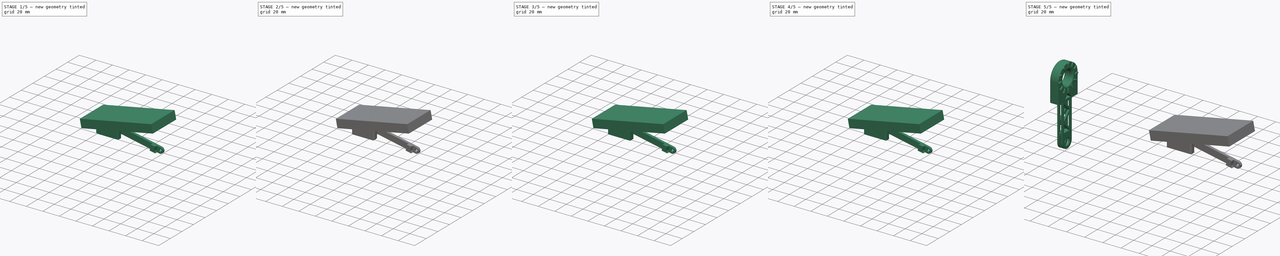
[diagram: build sequence overview — one tinted view per stage of 5, left to right]
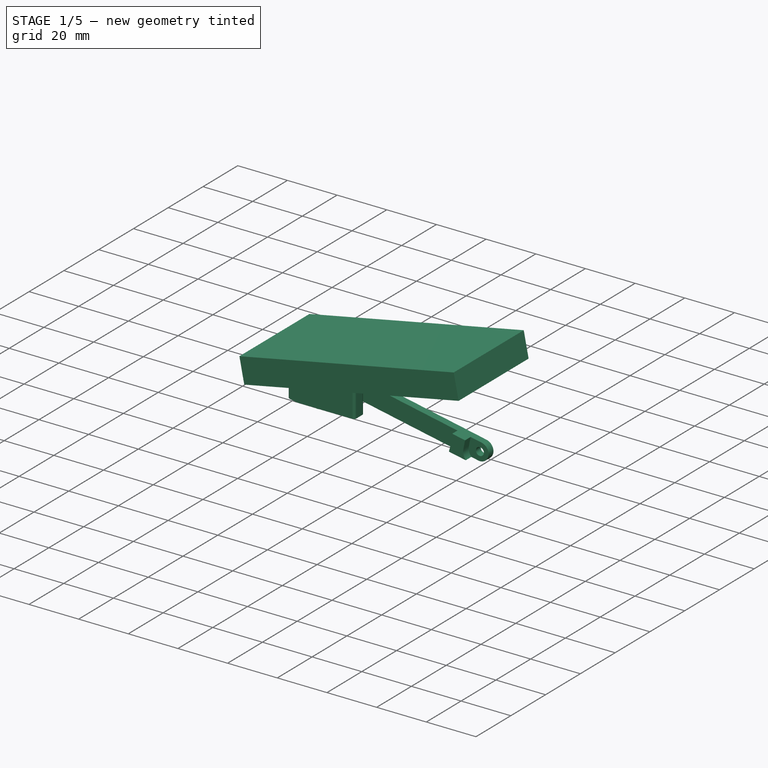
[diagram: stage 1 of 5 — iso view after this stage's code; geometry added in this stage tinted green]
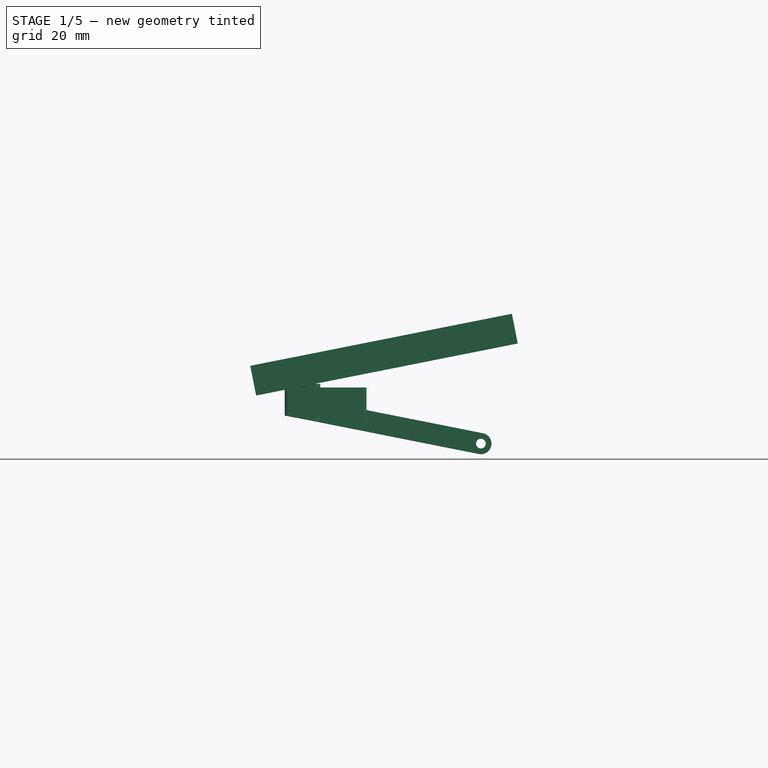
[diagram: stage 1 of 5 — front view after this stage's code; geometry added in this stage tinted green]
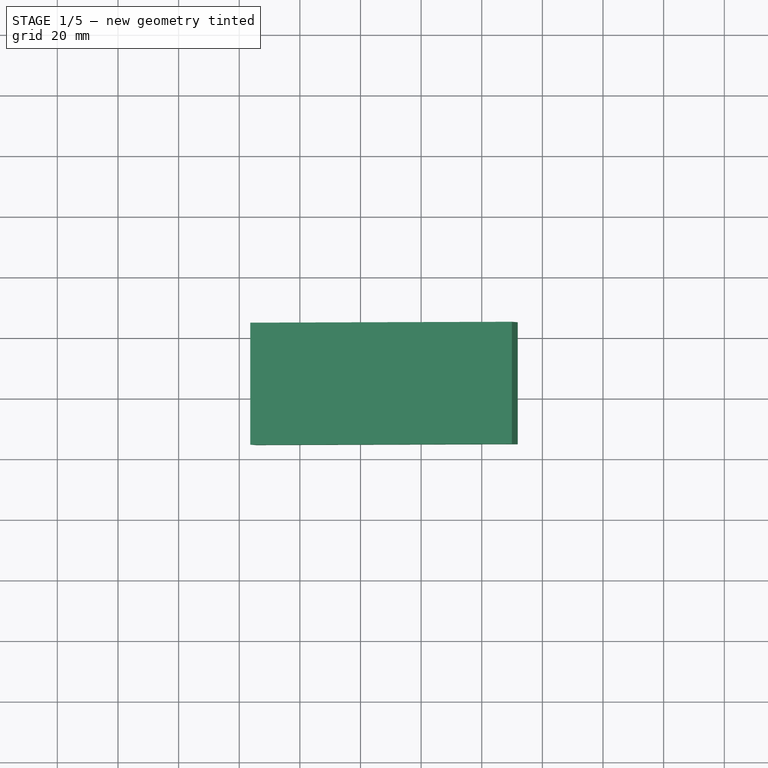
[diagram: stage 1 of 5 — top view after this stage's code; geometry added in this stage tinted green]
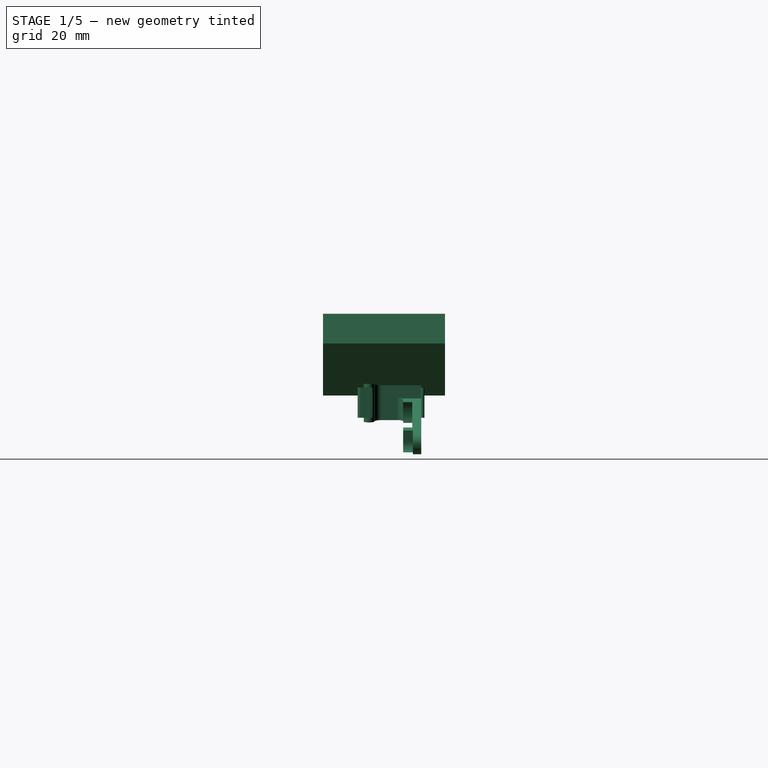
[diagram: stage 1 of 5 — right view after this stage's code; geometry added in this stage tinted green]
FCSTD DOCUMENT  (FreeCAD 0.18R4 (GitTag))
Label: mixer_soportes
License: CreativeCommons Attribution-ShareAlike
LicenseURL: http://creativecommons.org/licenses/by-sa/4.0/
objects: Part::Feature×7, Part::Fillet×7, Part::Box×6, Part::MultiFuse×4, Part::Cut×3, Part::FeaturePython×1, Sketcher::SketchObject×1, Part::Extrusion×1, Part::Mirroring×1
note: 31 computed .brp shape members not serialized (recipe doc carries the construction recipe); baked Part::Feature solids carry a one-line shape summary decoded from their .brp

FEATURE [Part::Feature] Fillet006002  label="Fillet008"
  Placement = pos=(0,0,1) rot=(0,0,1;0rad)
  shape: bbox 27 x 22 x 10 mm, 261 faces (baked)
FEATURE [Part::Feature] Arm_L001_solid003  label="Arm_L001 (Solid)003"
  Placement = pos=(0,0,-0.5) rot=(0,0,1;0rad)
  shape: bbox 65 x 19.5 x 23.7 mm, 628 faces (baked)
FEATURE [Part::MultiFuse] Fusion003
  Shapes = -> [Fillet006002,Arm_L001_solid003]
FEATURE [Sketcher::SketchObject] Sketch
  MapMode = 5
  Placement = pos=(-4.13738,1.78133e-06,20.3) rot=(0,-1,0;0.19635rad)
  Support = -> [Arm_L001_solid002]
  sketch-geometry (4):
    g0: LineSegment StartX=-92.0576 StartY=24.6741 StartZ=0 EndX=-4.05784 EndY=24.6741 EndZ=0
    g1: LineSegment StartX=-4.05784 StartY=24.6741 StartZ=0 EndX=-4.05784 EndY=-15.5873 EndZ=0
    g2: LineSegment StartX=-4.05784 StartY=-15.5873 StartZ=0 EndX=-92.0576 EndY=-15.5873 EndZ=0
    g3: LineSegment StartX=-92.0576 StartY=-15.5873 StartZ=0 EndX=-92.0576 EndY=24.6741 EndZ=0
  constraints (8):
    c: Coincident(g0,g1)
    c: Coincident(g1,g2)
    c: Coincident(g2,g3)
    c: Coincident(g3,g0)
    c: Horizontal(g0)
    c: Horizontal(g2)
    c: Vertical(g1)
    c: Vertical(g3)
FEATURE [Part::Extrusion] Extrude
  Base = -> Sketch
  Dir = (-0.19509,8.39953e-08,0.980785)
  DirMode = 2
  FaceMakerClass = Part::FaceMakerBullseye
  LengthFwd = 10
  LengthRev = 0
  Solid = true
  Symmetric = false
FEATURE [Part::Box] Box005  label="Cube005"
  AttacherType = Attacher::AttachEngine3D
  Height = 10
  Length = 15
  Placement = pos=(-96,-7,2.14) rot=(0,1,0;-0.191986rad)
  Width = 26
FEATURE [Part::Cut] Cut004  label="arm_L_extended"
  Base = -> Fusion003
  Tool = -> Box005
FEATURE [Part::Mirroring] Part__Mirroring  label="arm_L_extended (Mirror #1)"
  Base = (0,0,0)
  Normal = (0,0,1)
  Source = -> Cut004
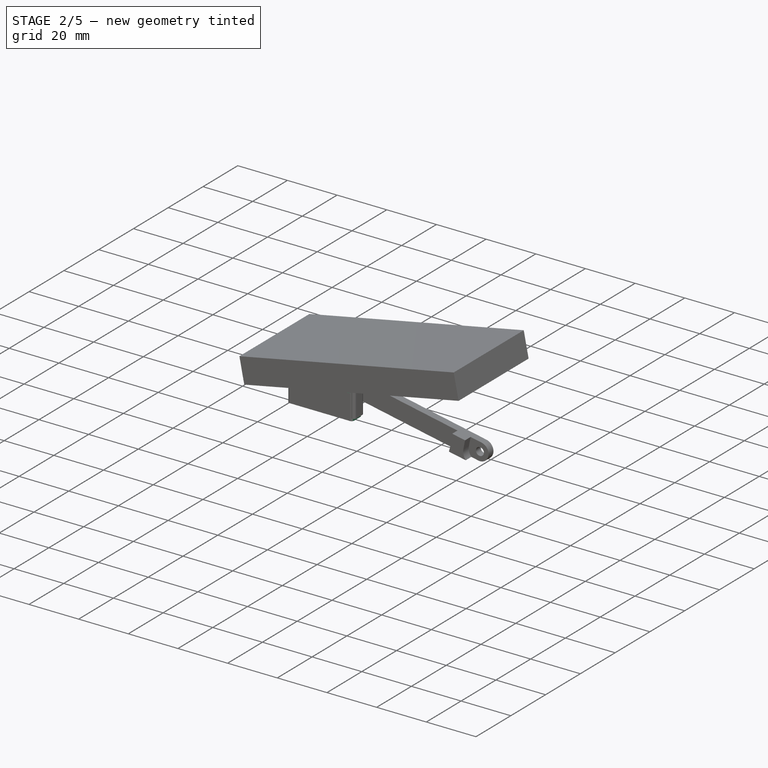
[diagram: stage 2 of 5 — iso view after this stage's code; geometry added in this stage tinted green]
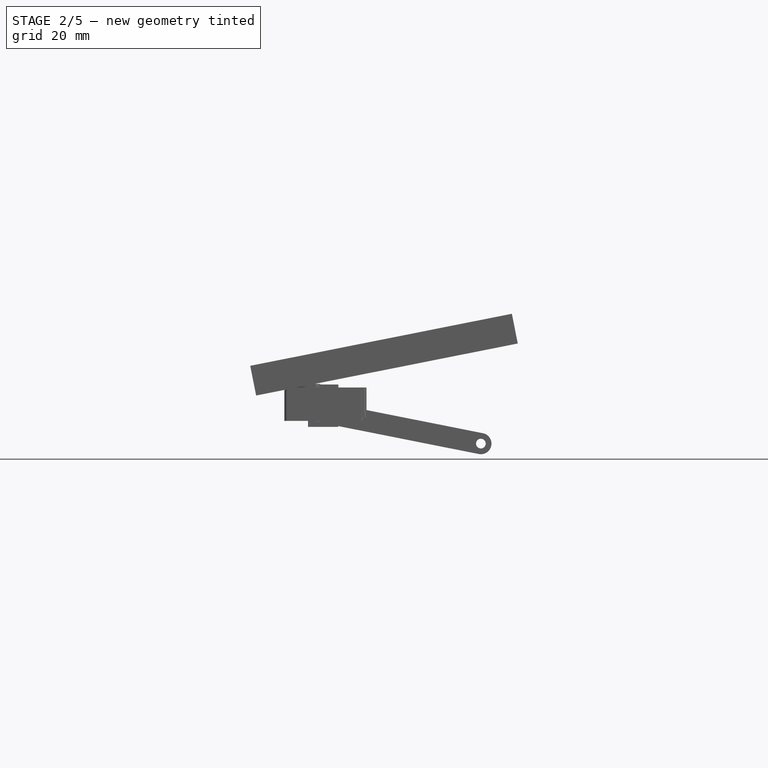
[diagram: stage 2 of 5 — front view after this stage's code; geometry added in this stage tinted green]
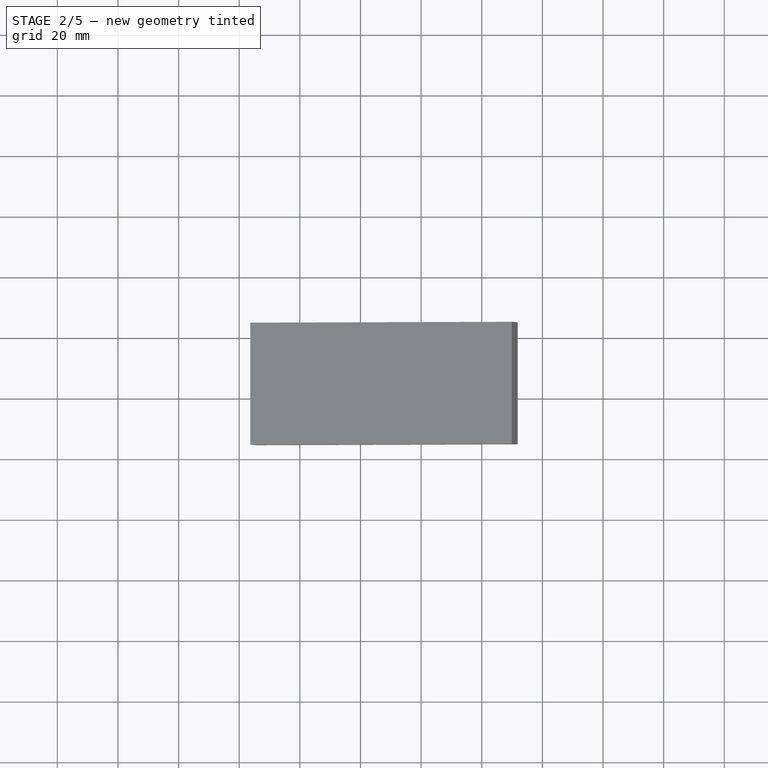
[diagram: stage 2 of 5 — top view after this stage's code; geometry added in this stage tinted green]
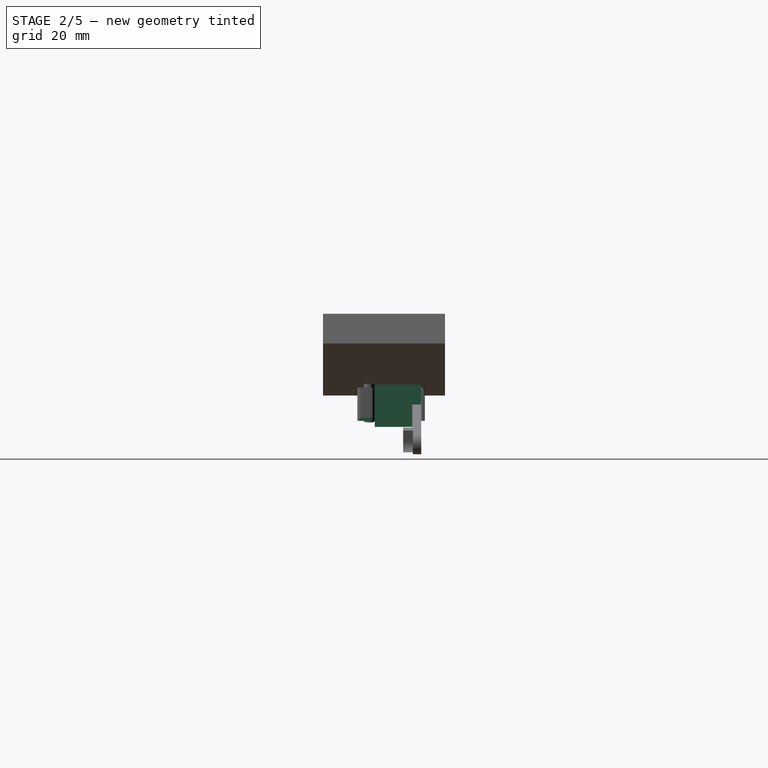
[diagram: stage 2 of 5 — right view after this stage's code; geometry added in this stage tinted green]
FEATURE [Part::Box] Box002  label="Cube002"
  AttacherType = Attacher::AttachEngine3D
  Height = 10
  Length = 8.5
  Placement = pos=(-85,-2.15,-6) rot=(0,0,1;0rad)
  Width = 20
FEATURE [Part::Box] Box003  label="Cube003"
  AttacherType = Attacher::AttachEngine3D
  Height = 14
  Length = 10
  Placement = pos=(-77.3,1.5,-8) rot=(0,0,1;0rad)
  Width = 15.25
FEATURE [Part::Box] Box004  label="Cube004"
  AttacherType = Attacher::AttachEngine3D
  Height = 10
  Length = 11
  Placement = pos=(-84,16.75,-6) rot=(0,0,1;0rad)
  Width = 1.1
FEATURE [Part::Feature] Fillet006001  label="Fillet007"
  shape: bbox 26 x 22 x 10 mm, 246 faces (baked)
FEATURE [Part::Feature] Arm_L001_solid002  label="Arm_L001 (Solid)002"
  Placement = pos=(0,0,-0.5) rot=(0,0,1;0rad)
  shape: bbox 64.5 x 19 x 23.2 mm, 628 faces (baked)
FEATURE [Part::FeaturePython] Scale  label="extendedor_1_percent_bigger"  # Draft clone (typed FeaturePython)
  Fuse = false
  Objects = -> [Fillet006001]
  Placement = pos=(0.753476,-0.0324141,0.06) rot=(0,0,1;0rad)
  Scale = (1.01,1.01,1.01)
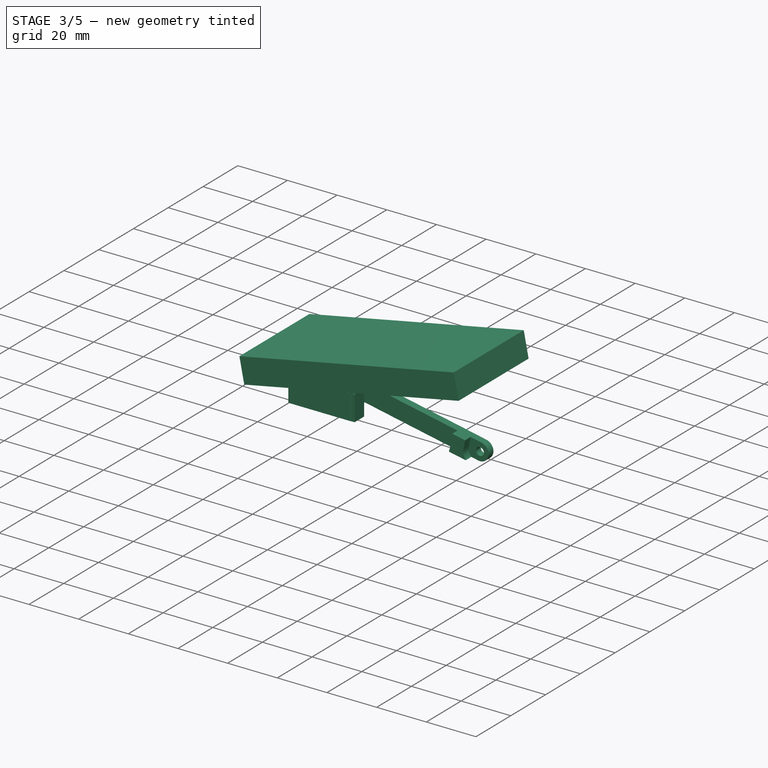
[diagram: stage 3 of 5 — iso view after this stage's code; geometry added in this stage tinted green]
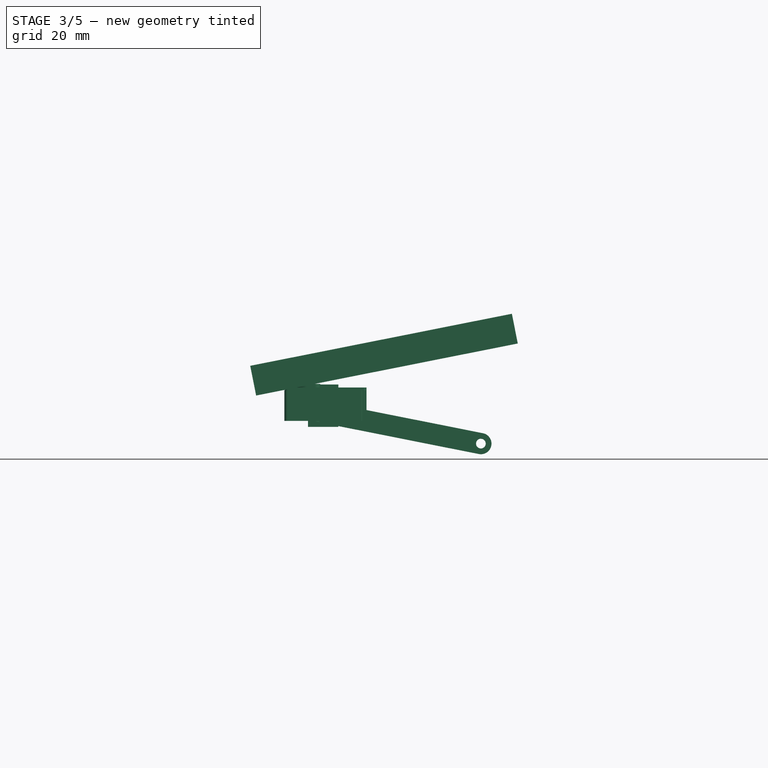
[diagram: stage 3 of 5 — front view after this stage's code; geometry added in this stage tinted green]
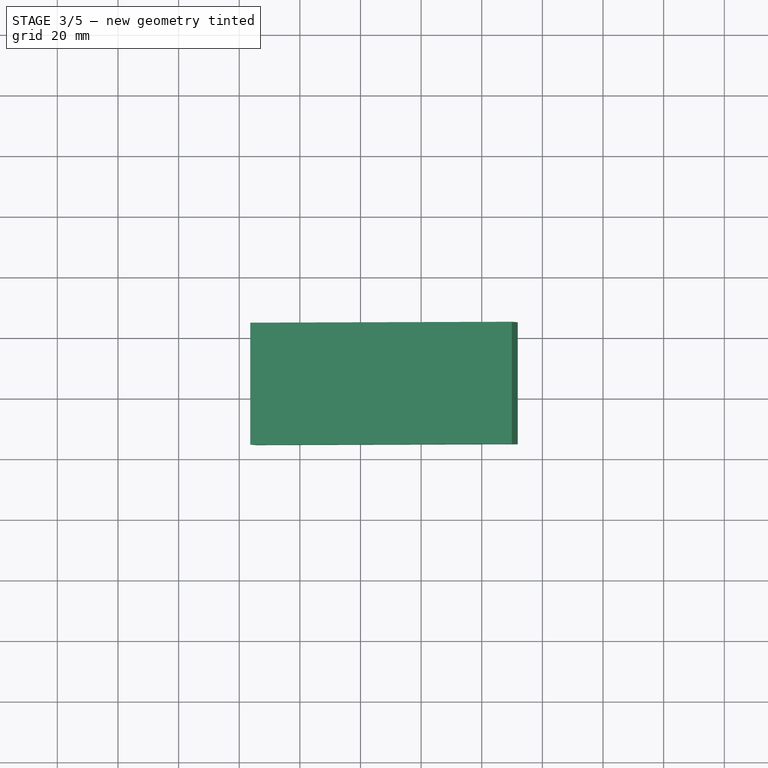
[diagram: stage 3 of 5 — top view after this stage's code; geometry added in this stage tinted green]
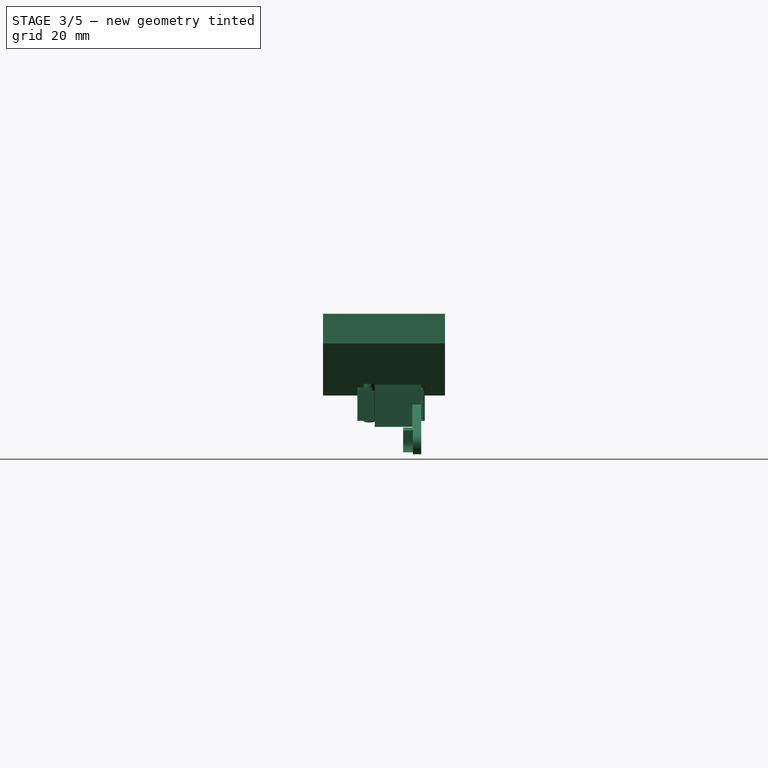
[diagram: stage 3 of 5 — right view after this stage's code; geometry added in this stage tinted green]
FEATURE [Part::Feature] Arm_L001_solid001  label="Arm_L001 (Solid)001"
  Placement = pos=(0,0,-0.5) rot=(0,0,1;0rad)
  shape: bbox 64.5 x 19 x 23.2 mm, 628 faces (baked)
FEATURE [Part::Box] Box  label="Cube"
  AttacherType = Attacher::AttachEngine3D
  Height = 10
  Length = 27
  Placement = pos=(-85,-2.15,-6) rot=(0,0,1;0rad)
  Width = 3.5
FEATURE [Part::Box] Box001  label="Cube001"
  AttacherType = Attacher::AttachEngine3D
  Height = 10
  Length = 27
  Placement = pos=(-85,-4.15,-6) rot=(0,0,1;0rad)
  Width = 2
FEATURE [Part::MultiFuse] Fusion001
  Shapes = -> [Box002,Box001,Box]
FEATURE [Part::Fillet] Fillet002
  Base = -> Fusion001
  Edges = 1 edges r=1: [Edge5]
FEATURE [Part::Fillet] Fillet003
  Base = -> Fillet002
  Edges = 1 edges r=1: [Edge26]
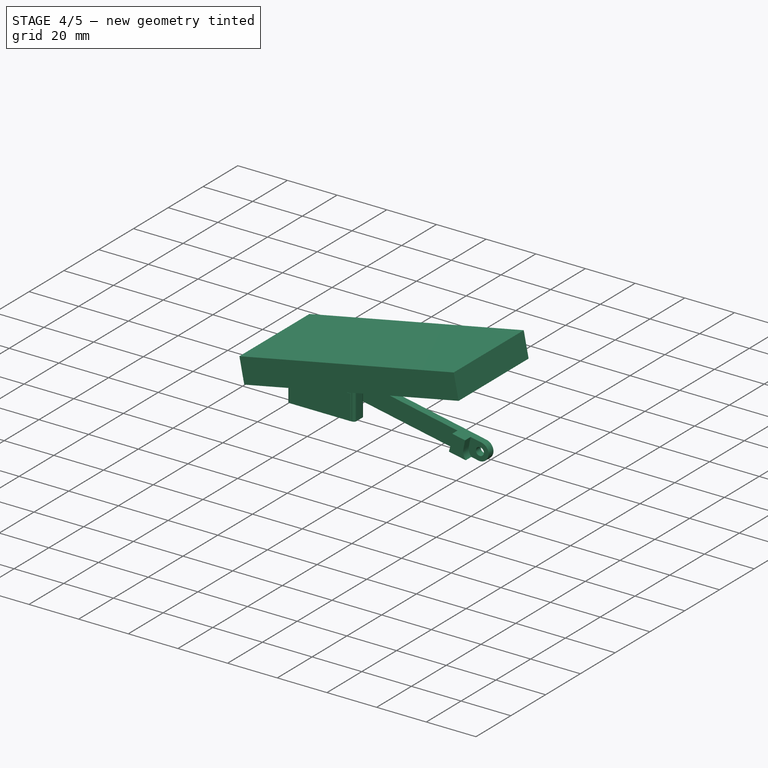
[diagram: stage 4 of 5 — iso view after this stage's code; geometry added in this stage tinted green]
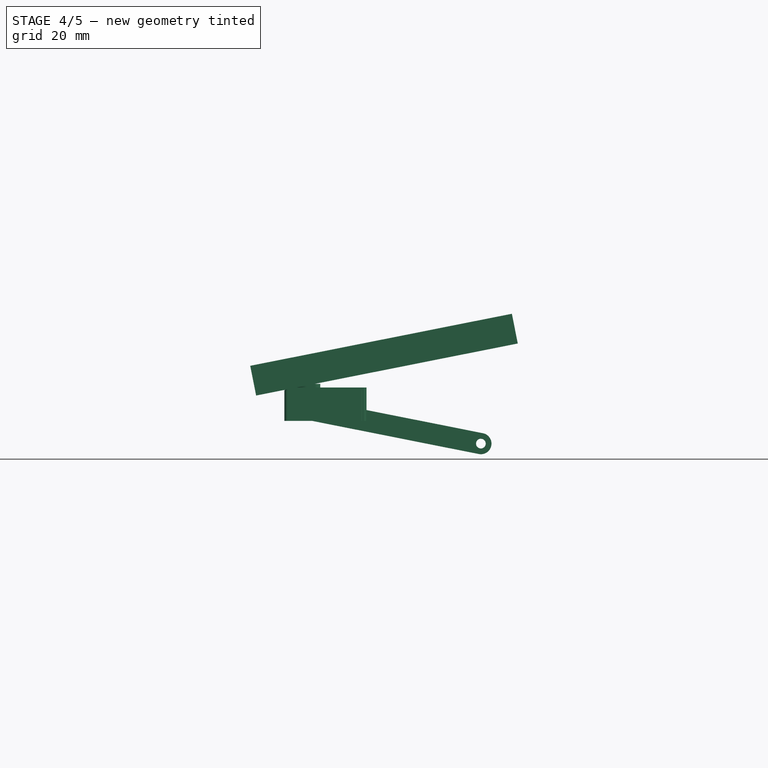
[diagram: stage 4 of 5 — front view after this stage's code; geometry added in this stage tinted green]
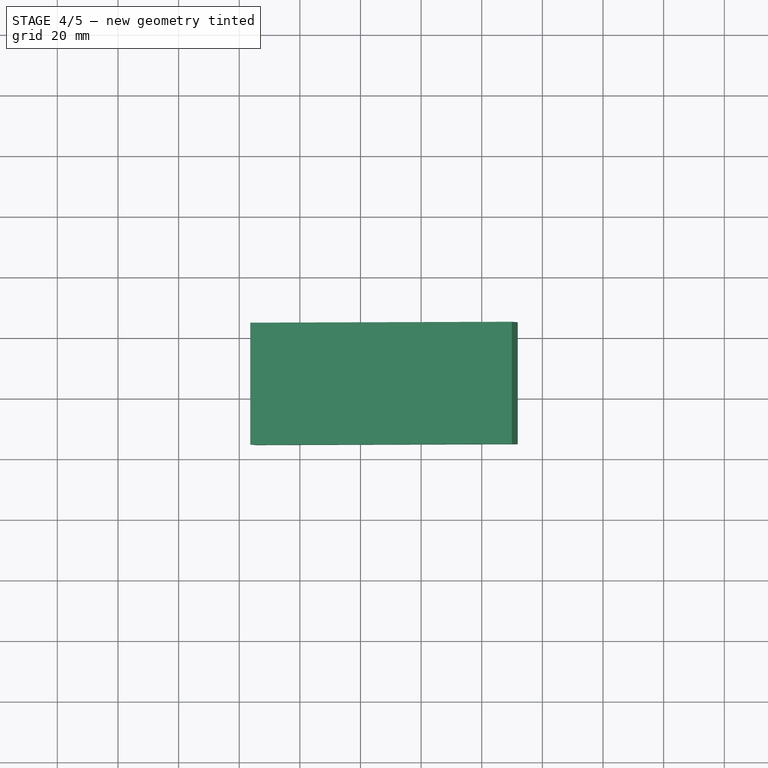
[diagram: stage 4 of 5 — top view after this stage's code; geometry added in this stage tinted green]
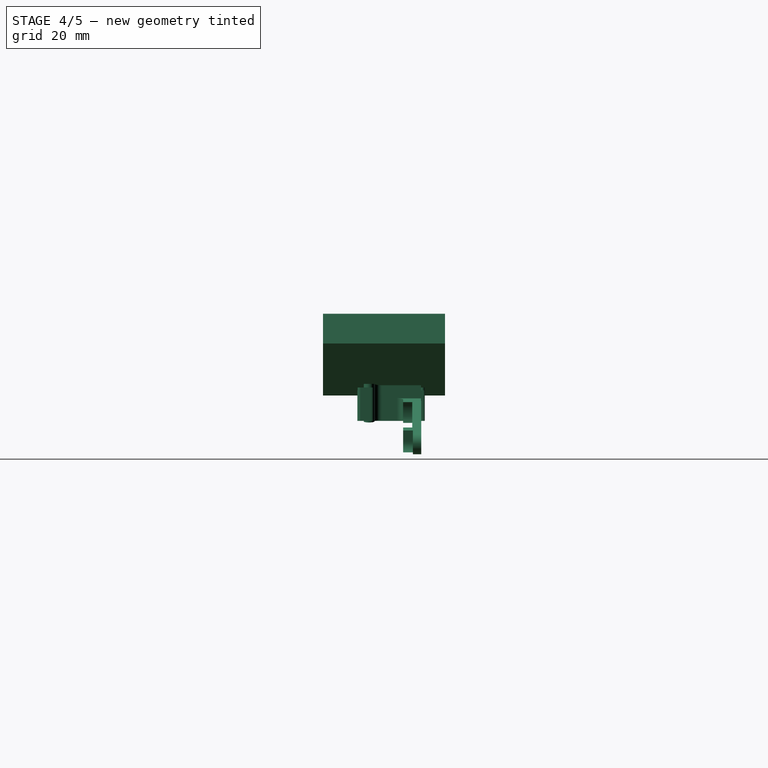
[diagram: stage 4 of 5 — right view after this stage's code; geometry added in this stage tinted green]
FEATURE [Part::Fillet] Fillet004
  Base = -> Fillet003
  Edges = 2 edges r=1: [Edge33,Edge41]
FEATURE [Part::Cut] Cut  label="extendedor_brazo"
  Base = -> Fillet004
  Tool = -> Arm_L001_solid001
FEATURE [Part::Cut] Cut003
  Base = -> Cut
  Tool = -> Box003
FEATURE [Part::Fillet] Fillet005
  Base = -> Cut003
  Edges = 1 edges r=0.6: [Edge420]
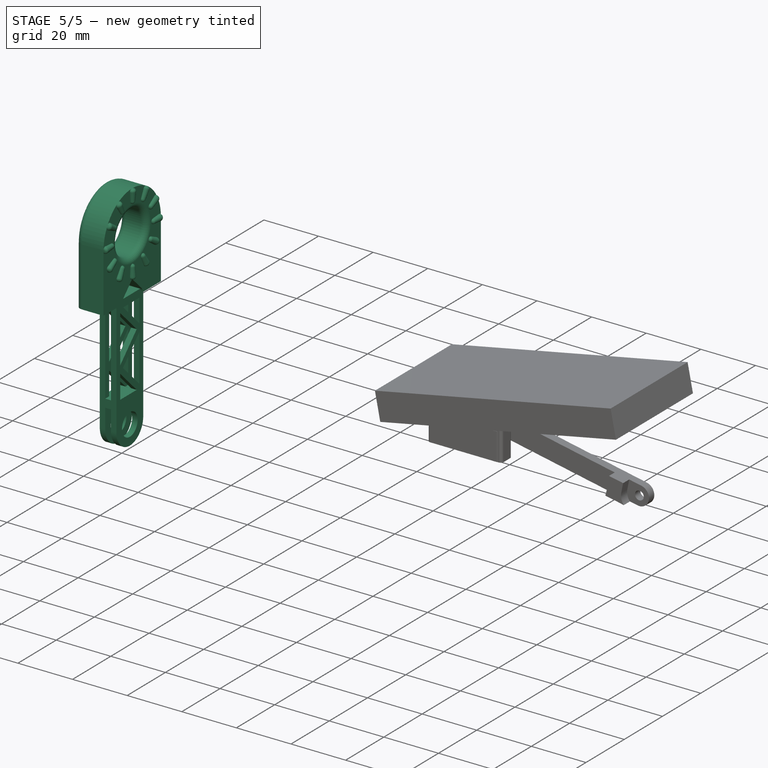
[diagram: stage 5 of 5 — iso view after this stage's code; geometry added in this stage tinted green]
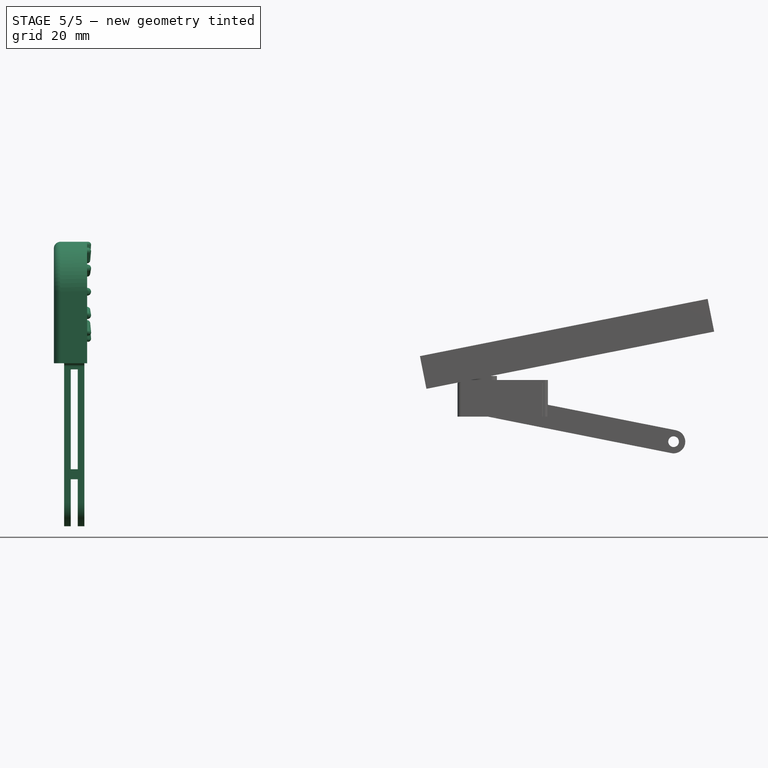
[diagram: stage 5 of 5 — front view after this stage's code; geometry added in this stage tinted green]
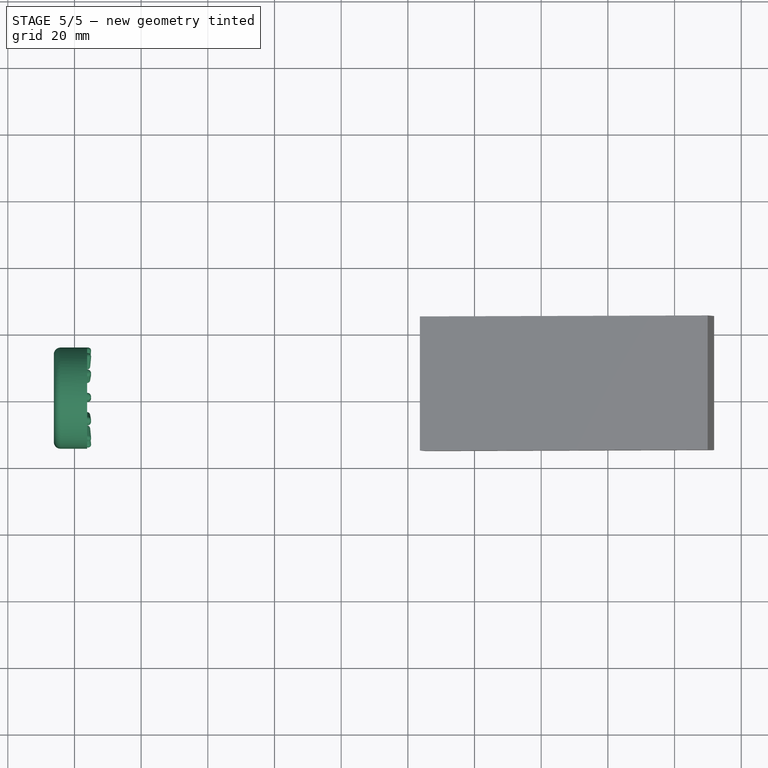
[diagram: stage 5 of 5 — top view after this stage's code; geometry added in this stage tinted green]
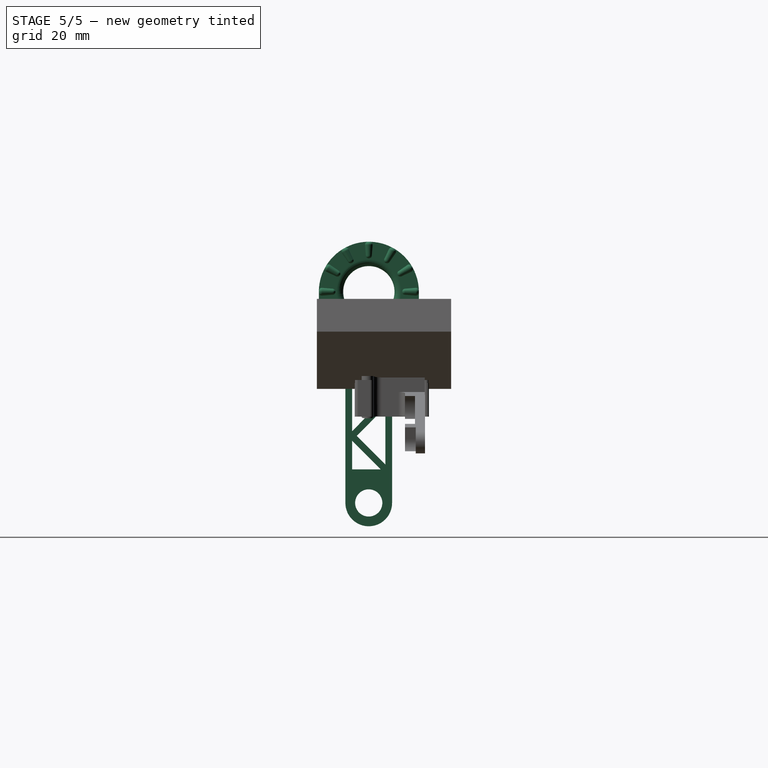
[diagram: stage 5 of 5 — right view after this stage's code; geometry added in this stage tinted green]
FEATURE [Part::Feature] Cut001  label="parte1"
  shape: bbox 11.17 x 30 x 36.46 mm, 11106 faces (baked)
FEATURE [Part::Feature] Cut002  label="parte2"
  Placement = pos=(-200,-33,1) rot=(0,0,1;0rad)
  shape: bbox 6.1 x 14 x 49.89 mm, 298 faces (baked)
FEATURE [Part::MultiFuse] Fusion
  Shapes = -> [Cut001,Cut002]
FEATURE [Part::Fillet] Fillet
  Base = -> Fusion
  Edges = 1 edges r=1: [Edge1157]
FEATURE [Part::Fillet] Fillet001
  Base = -> Fillet
  Edges = 1 edges r=1: [Edge1119]
FEATURE [Part::MultiFuse] Fusion002
  Shapes = -> [Fillet005,Box004]
FEATURE [Part::Fillet] Fillet006
  Base = -> Fusion002
  Edges = 2 edges r=0.4: [Edge84,Edge87]
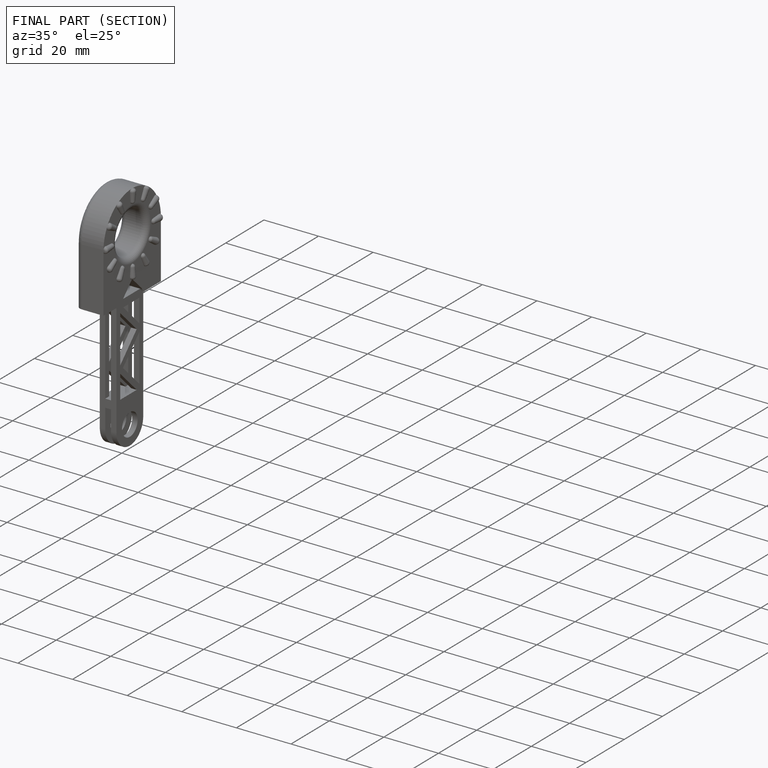
[diagram: finished part — half-section view (interior)]
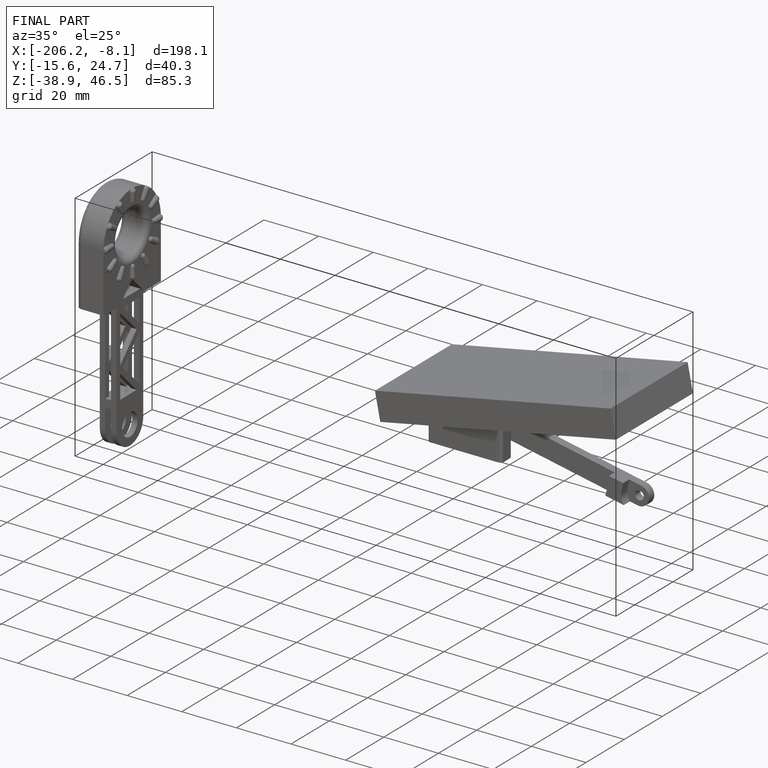
[diagram: finished part — iso view with bounding-box wireframe]
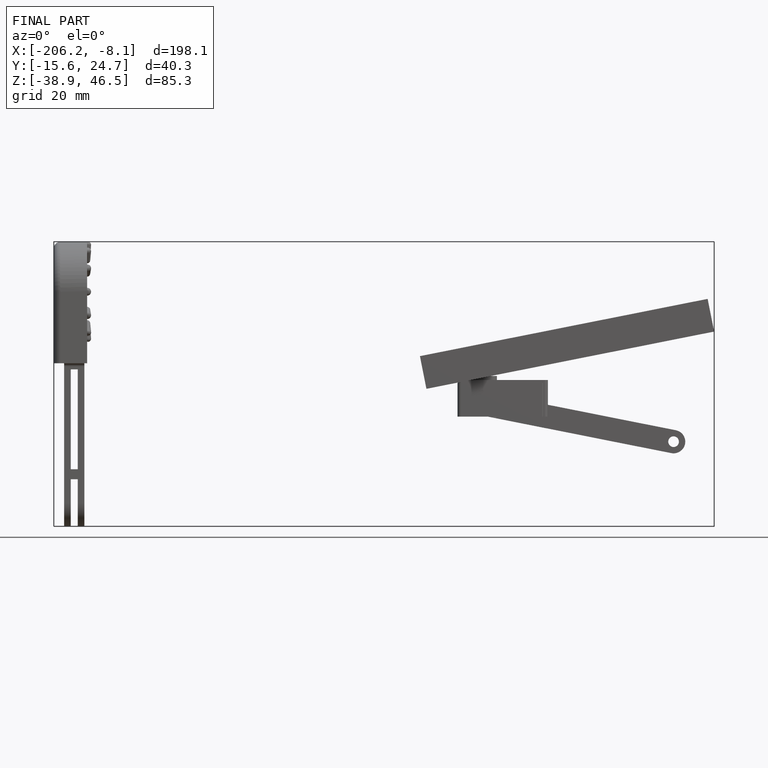
[diagram: finished part — front view with bounding-box wireframe]
